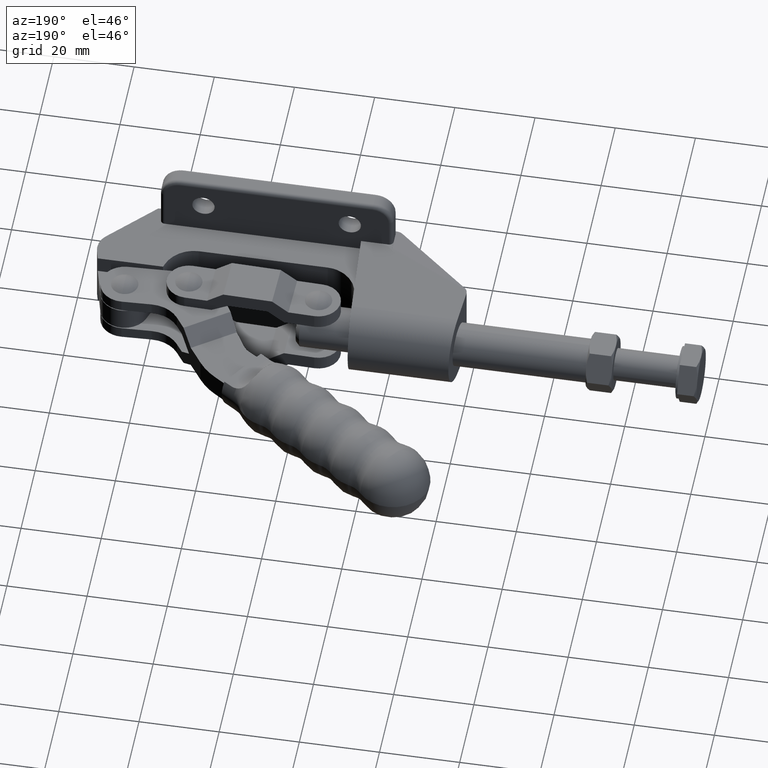
[diagram: clean part render]
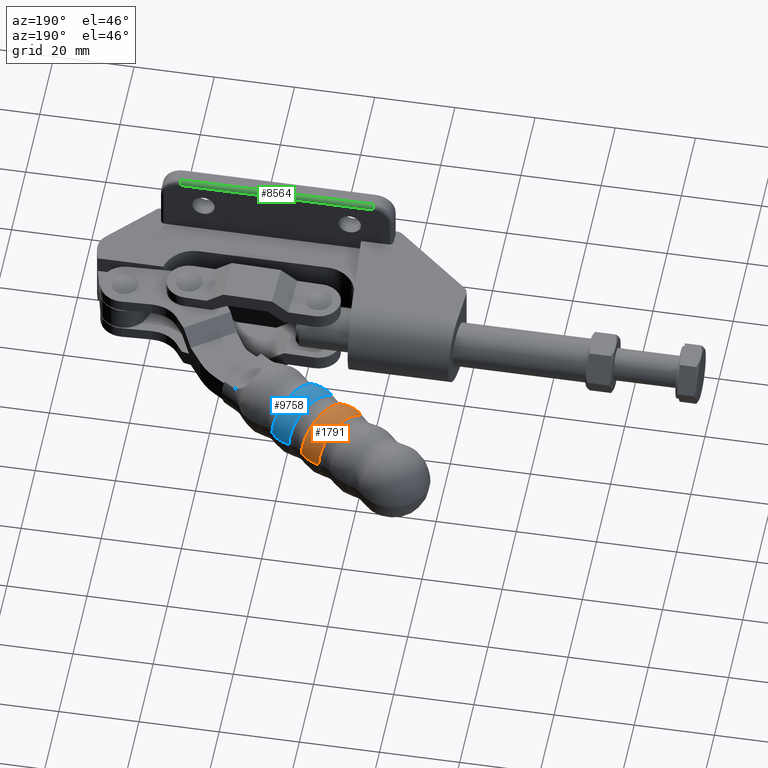
[diagram: same view with three faces highlighted in distinct colors, each labeled with its STEP entity id]
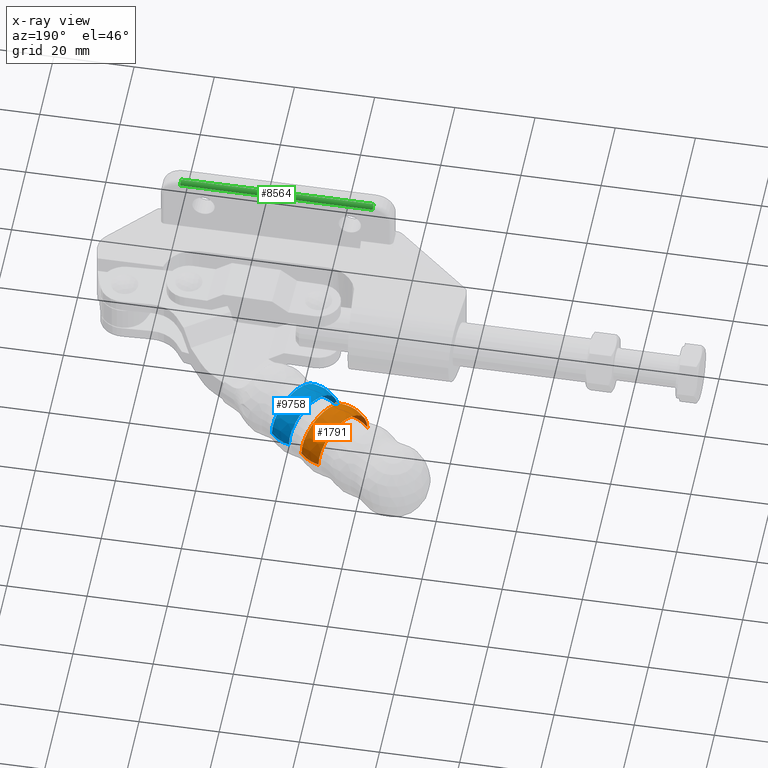
[diagram: x-ray of the same camera — body ghosted, the three highlighted faces saturated]
A machine part, auxiliary view with three faces highlighted in distinct colors.
The next image is the same camera in x-ray (body ghosted, the three faces saturated) — at least one of them is partly hidden behind the body in this view.
Their STEP definitions:

[orange] entity #1791 — the highlighted spherical surface has radius 9.2 mm.
#171 = DIRECTION ( 'NONE',  ( -7.537228986956611400E-017, -1.188283544296846500E-016, -1.000000000000000000 ) ) ;
#229 = SPHERICAL_SURFACE ( 'NONE', #516, 9.199999999999999300 ) ;
#516 = AXIS2_PLACEMENT_3D ( 'NONE', #9321, #11322, #10043 ) ;
#763 = DIRECTION ( 'NONE',  ( -0.5495252288957641600, -0.8354771228508044400, 1.823266660024429800E-017 ) ) ;
#1256 = EDGE_CURVE ( 'NONE', #6951, #8526, #5750, .T. ) ;
#1620 = CARTESIAN_POINT ( 'NONE',  ( 27.33890285560324100, 71.19283718669379400, 1.593414715775654200E-014 ) ) ;
#1791 = ADVANCED_FACE ( 'NONE', ( #3546 ), #229, .T. ) ;
#1821 = CIRCLE ( 'NONE', #5245, 8.740717628705155600 ) ;
#2520 = CIRCLE ( 'NONE', #3076, 8.740717628705150200 ) ;
#2880 = EDGE_CURVE ( 'NONE', #10977, #8526, #2520, .T. ) ;
#3076 = AXIS2_PLACEMENT_3D ( 'NONE', #11821, #6286, #763 ) ;
#3237 = DIRECTION ( 'NONE',  ( 0.0000000000000000000, -1.000000000000000000, 1.651191600367675200E-017 ) ) ;
#3546 = FACE_OUTER_BOUND ( 'NONE', #4899, .T. ) ;
#3892 = CARTESIAN_POINT ( 'NONE',  ( 22.53565799997580400, 63.89016757061190100, 1.716394293475206100E-014 ) ) ;
#4662 = EDGE_CURVE ( 'NONE', #5783, #10977, #7204, .T. ) ;
#4831 = DIRECTION ( 'NONE',  ( -0.5495252288957638300, -0.8354771228508046700, 1.823266660024428600E-017 ) ) ;
#4899 = EDGE_LOOP ( 'NONE', ( #5910, #5748, #5148, #7375 ) ) ;
#5148 = ORIENTED_EDGE ( 'NONE', *, *, #1256, .T. ) ;
#5245 = AXIS2_PLACEMENT_3D ( 'NONE', #3892, #10351, #4831 ) ;
#5462 = CARTESIAN_POINT ( 'NONE',  ( 22.52891207116733300, 53.43265732686011700, 1.733667093792578600E-014 ) ) ;
#5709 = CARTESIAN_POINT ( 'NONE',  ( 24.93390746338528500, 62.31274725677695900, 1.717062364115339600E-014 ) ) ;
#5748 = ORIENTED_EDGE ( 'NONE', *, *, #11335, .T. ) ;
#5750 = CIRCLE ( 'NONE', #7000, 9.199999999999999300 ) ;
#5783 = VERTEX_POINT ( 'NONE', #1620 ) ;
#5910 = ORIENTED_EDGE ( 'NONE', *, *, #4662, .F. ) ;
#6174 = CARTESIAN_POINT ( 'NONE',  ( 32.13540178242220700, 68.03799655902388100, 1.594750857055921100E-014 ) ) ;
#6286 = DIRECTION ( 'NONE',  ( 0.8354771228508045500, -0.5495252288957639400, 2.327354784377494500E-018 ) ) ;
#6651 = DIRECTION ( 'NONE',  ( 0.0000000000000000000, 1.000000000000000000, -1.188283544296847800E-016 ) ) ;
#6951 = VERTEX_POINT ( 'NONE', #10130 ) ;
#7000 = AXIS2_PLACEMENT_3D ( 'NONE', #11773, #8575, #3237 ) ;
#7204 = CIRCLE ( 'NONE', #8746, 9.199999999999992200 ) ;
#7375 = ORIENTED_EDGE ( 'NONE', *, *, #2880, .F. ) ;
#8526 = VERTEX_POINT ( 'NONE', #5462 ) ;
#8575 = DIRECTION ( 'NONE',  ( 8.074858607774709500E-018, 1.651191600367687500E-017, 1.000000000000000000 ) ) ;
#8746 = AXIS2_PLACEMENT_3D ( 'NONE', #5709, #171, #6651 ) ;
#9321 = CARTESIAN_POINT ( 'NONE',  ( 24.93390746338528500, 62.31274725677695900, 1.717062364115339600E-014 ) ) ;
#10043 = DIRECTION ( 'NONE',  ( -0.5495252288957641600, -0.8354771228508045500, 1.823266660024438100E-017 ) ) ;
#10130 = CARTESIAN_POINT ( 'NONE',  ( 17.73241314434837100, 56.58749795453001500, 1.732330952512312400E-014 ) ) ;
#10351 = DIRECTION ( 'NONE',  ( 0.8354771228508045500, -0.5495252288957639400, 2.327354784377494500E-018 ) ) ;
#10977 = VERTEX_POINT ( 'NONE', #6174 ) ;
#11322 = DIRECTION ( 'NONE',  ( -8.074858607774677100E-018, -1.651191600367682600E-017, -1.000000000000000000 ) ) ;
#11335 = EDGE_CURVE ( 'NONE', #5783, #6951, #1821, .T. ) ;
#11773 = CARTESIAN_POINT ( 'NONE',  ( 24.93390746338528500, 62.31274725677695900, 1.717062364115339600E-014 ) ) ;
#11821 = CARTESIAN_POINT ( 'NONE',  ( 27.33215692679477400, 60.73532694294200200, 1.717730434755473000E-014 ) ) ;

[blue] entity #9758 — the highlighted spherical surface has radius 9.2 mm.
#121 = CARTESIAN_POINT ( 'NONE',  ( 26.08718437285642000, 51.09224566557237100, 1.734658307296689800E-014 ) ) ;
#134 = ORIENTED_EDGE ( 'NONE', *, *, #6256, .F. ) ;
#332 = AXIS2_PLACEMENT_3D ( 'NONE', #10552, #5026, #11509 ) ;
#463 = DIRECTION ( 'NONE',  ( 0.0000000000000000000, -1.000000000000000000, 1.651191600367675200E-017 ) ) ;
#652 = CIRCLE ( 'NONE', #332, 9.199999999999992200 ) ;
#680 = AXIS2_PLACEMENT_3D ( 'NONE', #6040, #9741, #4233 ) ;
#880 = DIRECTION ( 'NONE',  ( 0.8354771228508045500, -0.5495252288957639400, 2.327354784377494500E-018 ) ) ;
#1393 = DIRECTION ( 'NONE',  ( 0.8354771228508045500, -0.5495252288957639400, 2.327354784377494500E-018 ) ) ;
#1607 = EDGE_CURVE ( 'NONE', #1823, #8449, #4862, .T. ) ;
#1680 = CIRCLE ( 'NONE', #8382, 8.740717628705148500 ) ;
#1823 = VERTEX_POINT ( 'NONE', #121 ) ;
#1878 = ORIENTED_EDGE ( 'NONE', *, *, #7689, .F. ) ;
#1880 = VERTEX_POINT ( 'NONE', #9848 ) ;
#3437 = AXIS2_PLACEMENT_3D ( 'NONE', #9274, #8439, #463 ) ;
#4233 = DIRECTION ( 'NONE',  ( -0.5495252288957641600, -0.8354771228508045500, 1.823266660024438100E-017 ) ) ;
#4481 = ORIENTED_EDGE ( 'NONE', *, *, #1607, .T. ) ;
#4862 = CIRCLE ( 'NONE', #3437, 9.199999999999999300 ) ;
#5026 = DIRECTION ( 'NONE',  ( -7.537228986956611400E-017, -1.188283544296846500E-016, -1.000000000000000000 ) ) ;
#5238 = CARTESIAN_POINT ( 'NONE',  ( 35.69367408411129400, 65.69758489773614900, 1.595742070560031900E-014 ) ) ;
#6040 = CARTESIAN_POINT ( 'NONE',  ( 33.28867869189333800, 56.81749496781931400, 1.719389718899717300E-014 ) ) ;
#6060 = EDGE_LOOP ( 'NONE', ( #1878, #11323, #4481, #134 ) ) ;
#6256 = EDGE_CURVE ( 'NONE', #1880, #8449, #1680, .T. ) ;
#6406 = CARTESIAN_POINT ( 'NONE',  ( 30.89042922848385700, 58.39491528165426400, 1.718721648259583500E-014 ) ) ;
#6652 = SPHERICAL_SURFACE ( 'NONE', #680, 9.199999999999999300 ) ;
#6924 = CARTESIAN_POINT ( 'NONE',  ( 35.68692815530281600, 55.24007465398436500, 1.720057789539850400E-014 ) ) ;
#7245 = CARTESIAN_POINT ( 'NONE',  ( 30.88368329967538300, 47.93740503790247200, 1.735994448576956300E-014 ) ) ;
#7326 = DIRECTION ( 'NONE',  ( -0.5495252288957638300, -0.8354771228508046700, 1.823266660024428600E-017 ) ) ;
#7689 = EDGE_CURVE ( 'NONE', #10982, #1880, #652, .T. ) ;
#7840 = DIRECTION ( 'NONE',  ( -0.5495252288957638300, -0.8354771228508046700, 1.823266660024430100E-017 ) ) ;
#8382 = AXIS2_PLACEMENT_3D ( 'NONE', #6924, #1393, #7840 ) ;
#8439 = DIRECTION ( 'NONE',  ( 8.074858607774709500E-018, 1.651191600367687500E-017, 1.000000000000000000 ) ) ;
#8449 = VERTEX_POINT ( 'NONE', #7245 ) ;
#8463 = EDGE_CURVE ( 'NONE', #10982, #1823, #9857, .T. ) ;
#9274 = CARTESIAN_POINT ( 'NONE',  ( 33.28867869189333800, 56.81749496781931400, 1.719389718899717300E-014 ) ) ;
#9741 = DIRECTION ( 'NONE',  ( -8.074858607774677100E-018, -1.651191600367682600E-017, -1.000000000000000000 ) ) ;
#9758 = ADVANCED_FACE ( 'NONE', ( #9956 ), #6652, .T. ) ;
#9848 = CARTESIAN_POINT ( 'NONE',  ( 40.49017301093025600, 62.54274427006625800, 1.597078211840298400E-014 ) ) ;
#9857 = CIRCLE ( 'NONE', #11425, 8.740717628705155600 ) ;
#9956 = FACE_OUTER_BOUND ( 'NONE', #6060, .T. ) ;
#10552 = CARTESIAN_POINT ( 'NONE',  ( 33.28867869189333800, 56.81749496781931400, 1.719389718899717300E-014 ) ) ;
#10982 = VERTEX_POINT ( 'NONE', #5238 ) ;
#11323 = ORIENTED_EDGE ( 'NONE', *, *, #8463, .T. ) ;
#11425 = AXIS2_PLACEMENT_3D ( 'NONE', #6406, #880, #7326 ) ;
#11509 = DIRECTION ( 'NONE',  ( 0.0000000000000000000, 1.000000000000000000, -1.188283544296847800E-016 ) ) ;

[green] entity #8564 — the highlighted cylindrical surface (edge-blend (fillet) strip) has radius 1 mm, axis along (-1, 0, 0).
#91 = CARTESIAN_POINT ( 'NONE',  ( 92.50000000000000000, 4.800000000000012300, 22.80000000000001500 ) ) ;
#387 = CARTESIAN_POINT ( 'NONE',  ( 25.50000000000027400, 4.800000000000012300, 22.80000000000001500 ) ) ;
#431 = CIRCLE ( 'NONE', #8336, 1.000000000000000900 ) ;
#522 = CIRCLE ( 'NONE', #8584, 1.000000000000000900 ) ;
#567 = VERTEX_POINT ( 'NONE', #4141 ) ;
#924 = DIRECTION ( 'NONE',  ( 0.0000000000000000000, 0.0000000000000000000, -1.000000000000000000 ) ) ;
#1614 = ORIENTED_EDGE ( 'NONE', *, *, #8940, .F. ) ;
#1828 = VECTOR ( 'NONE', #5009, 1000.000000000000000 ) ;
#1883 = EDGE_CURVE ( 'NONE', #11453, #10649, #9184, .T. ) ;
#1888 = ORIENTED_EDGE ( 'NONE', *, *, #11172, .F. ) ;
#2237 = CARTESIAN_POINT ( 'NONE',  ( 73.50000000000001400, 3.800000000000012700, 22.80000000000001500 ) ) ;
#3284 = CARTESIAN_POINT ( 'NONE',  ( 25.50000000000027400, 3.800000000000012700, 23.80000000000001500 ) ) ;
#3497 = ORIENTED_EDGE ( 'NONE', *, *, #9745, .T. ) ;
#3500 = FACE_OUTER_BOUND ( 'NONE', #8542, .T. ) ;
#3749 = DIRECTION ( 'NONE',  ( -1.000000000000000000, 0.0000000000000000000, 0.0000000000000000000 ) ) ;
#3808 = ORIENTED_EDGE ( 'NONE', *, *, #1883, .F. ) ;
#4141 = CARTESIAN_POINT ( 'NONE',  ( 73.50000000000001400, 3.800000000000012700, 23.80000000000001500 ) ) ;
#4192 = DIRECTION ( 'NONE',  ( 1.000000000000000000, 0.0000000000000000000, 0.0000000000000000000 ) ) ;
#4935 = LINE ( 'NONE', #5497, #9548 ) ;
#5009 = DIRECTION ( 'NONE',  ( 1.000000000000000000, -0.0000000000000000000, -0.0000000000000000000 ) ) ;
#5497 = CARTESIAN_POINT ( 'NONE',  ( 92.50000000000000000, 3.800000000000012700, 23.80000000000001500 ) ) ;
#5678 = CYLINDRICAL_SURFACE ( 'NONE', #8079, 1.000000000000000900 ) ;
#6397 = CARTESIAN_POINT ( 'NONE',  ( 73.50000000000001400, 4.800000000000012300, 22.80000000000001500 ) ) ;
#6456 = DIRECTION ( 'NONE',  ( 1.000000000000000000, 0.0000000000000000000, 0.0000000000000000000 ) ) ;
#6571 = CARTESIAN_POINT ( 'NONE',  ( 92.50000000000000000, 3.800000000000012700, 22.80000000000001500 ) ) ;
#7807 = VERTEX_POINT ( 'NONE', #3284 ) ;
#8079 = AXIS2_PLACEMENT_3D ( 'NONE', #6571, #11177, #9301 ) ;
#8336 = AXIS2_PLACEMENT_3D ( 'NONE', #9702, #4192, #10634 ) ;
#8542 = EDGE_LOOP ( 'NONE', ( #3497, #1614, #1888, #3808 ) ) ;
#8564 = ADVANCED_FACE ( 'NONE', ( #3500 ), #5678, .T. ) ;
#8584 = AXIS2_PLACEMENT_3D ( 'NONE', #2237, #6456, #924 ) ;
#8940 = EDGE_CURVE ( 'NONE', #567, #7807, #4935, .T. ) ;
#9184 = LINE ( 'NONE', #91, #1828 ) ;
#9301 = DIRECTION ( 'NONE',  ( 0.0000000000000000000, 0.0000000000000000000, 1.000000000000000000 ) ) ;
#9548 = VECTOR ( 'NONE', #3749, 1000.000000000000000 ) ;
#9702 = CARTESIAN_POINT ( 'NONE',  ( 25.50000000000027400, 3.800000000000012700, 22.80000000000001500 ) ) ;
#9745 = EDGE_CURVE ( 'NONE', #11453, #7807, #431, .T. ) ;
#10634 = DIRECTION ( 'NONE',  ( 0.0000000000000000000, 0.0000000000000000000, -1.000000000000000000 ) ) ;
#10649 = VERTEX_POINT ( 'NONE', #6397 ) ;
#11172 = EDGE_CURVE ( 'NONE', #10649, #567, #522, .T. ) ;
#11177 = DIRECTION ( 'NONE',  ( -1.000000000000000000, 0.0000000000000000000, 0.0000000000000000000 ) ) ;
#11453 = VERTEX_POINT ( 'NONE', #387 ) ;